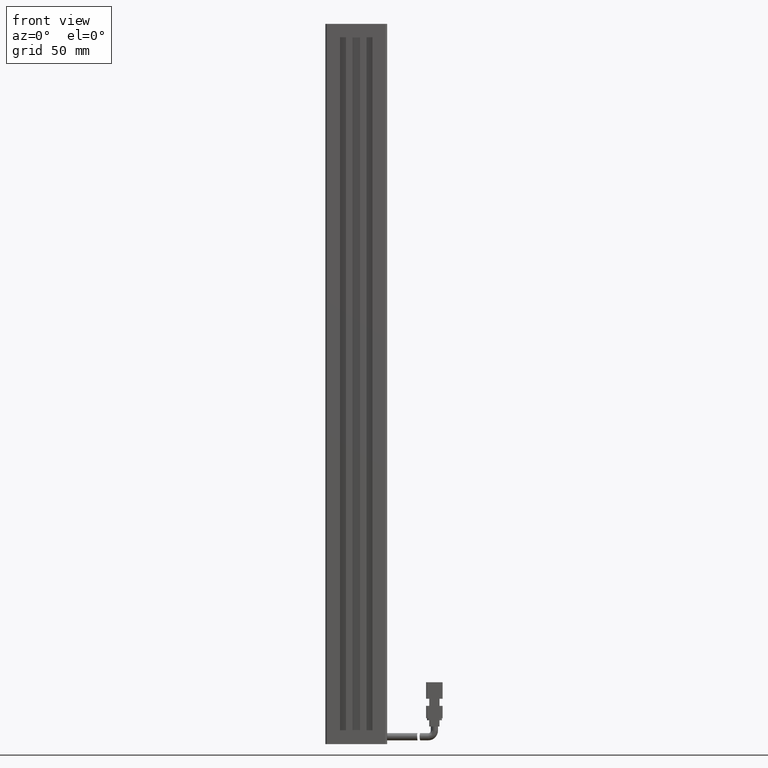
[diagram: clean part render]
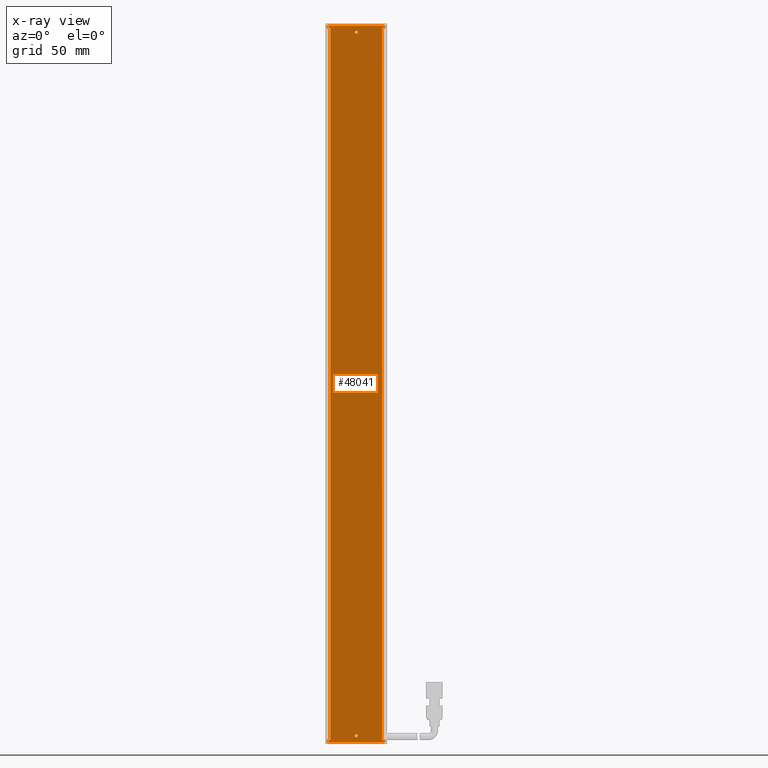
[diagram: x-ray — body ghosted, one internal face saturated and labeled with its STEP entity id]
A machine part, front view, then the same camera in x-ray: the body is ghosted and one INTERNAL B-rep face — a face not visible from any outside direction — is saturated and labeled: STEP entity #48041.
In plain terms, the highlighted planar face has unit normal (-0, 1, 0).
Its self-contained STEP definition (entity closure, byte-faithful):
#106 = ORIENTED_EDGE ( 'NONE', *, *, #58812, .F. ) ;
#227 = EDGE_CURVE ( 'NONE', #38897, #9683, #65354, .T. ) ;
#303 = LINE ( 'NONE', #24814, #40169 ) ;
#789 = CARTESIAN_POINT ( 'NONE',  ( 40.92537974683541800, 32.19594479660386100, 56.00000000000005000 ) ) ;
#849 = VERTEX_POINT ( 'NONE', #33002 ) ;
#969 = VERTEX_POINT ( 'NONE', #57996 ) ;
#1435 = ORIENTED_EDGE ( 'NONE', *, *, #12669, .T. ) ;
#1449 = CARTESIAN_POINT ( 'NONE',  ( 25.92537974683541800, 32.19594479660386100, 58.00000000000000700 ) ) ;
#1511 = CIRCLE ( 'NONE', #61158, 0.7499999999999729100 ) ;
#2529 = VERTEX_POINT ( 'NONE', #11626 ) ;
#3069 = CARTESIAN_POINT ( 'NONE',  ( 53.42537974683542500, 32.19594479660386800, 60.00000000000001400 ) ) ;
#3681 = ORIENTED_EDGE ( 'NONE', *, *, #33162, .F. ) ;
#4078 = DIRECTION ( 'NONE',  ( 1.000000000000000000, 0.0000000000000000000, 0.0000000000000000000 ) ) ;
#4305 = VECTOR ( 'NONE', #6582, 1000.000000000000000 ) ;
#4897 = EDGE_LOOP ( 'NONE', ( #14689, #5798 ) ) ;
#5228 = EDGE_LOOP ( 'NONE', ( #38153, #61682 ) ) ;
#5230 = CARTESIAN_POINT ( 'NONE',  ( 27.52537974683535900, 32.19594479660386100, -289.0000000000000000 ) ) ;
#5798 = ORIENTED_EDGE ( 'NONE', *, *, #49959, .F. ) ;
#5941 = DIRECTION ( 'NONE',  ( 0.0000000000000000000, 0.0000000000000000000, 1.000000000000000000 ) ) ;
#6582 = DIRECTION ( 'NONE',  ( 1.000000000000000000, -0.0000000000000000000, 0.0000000000000000000 ) ) ;
#6733 = VECTOR ( 'NONE', #18462, 1000.000000000000000 ) ;
#7038 = CARTESIAN_POINT ( 'NONE',  ( 40.92537974683536100, 32.19594479660386100, -286.0000000000000000 ) ) ;
#7869 = AXIS2_PLACEMENT_3D ( 'NONE', #789, #37148, #5941 ) ;
#7879 = FACE_BOUND ( 'NONE', #4897, .T. ) ;
#8304 = VERTEX_POINT ( 'NONE', #53223 ) ;
#9221 = AXIS2_PLACEMENT_3D ( 'NONE', #44750, #13536, #50029 ) ;
#9683 = VERTEX_POINT ( 'NONE', #49461 ) ;
#10264 = VERTEX_POINT ( 'NONE', #5230 ) ;
#10459 = CARTESIAN_POINT ( 'NONE',  ( 54.32537974683541600, 32.19594479660386100, 59.00000000000005000 ) ) ;
#10483 = DIRECTION ( 'NONE',  ( 5.551115123125781500E-017, 0.0000000000000000000, 1.000000000000000000 ) ) ;
#11266 = LINE ( 'NONE', #51069, #37348 ) ;
#11626 = CARTESIAN_POINT ( 'NONE',  ( 54.32537974683537400, 32.19594479660386100, -289.0000000000000000 ) ) ;
#11839 = ORIENTED_EDGE ( 'NONE', *, *, #67478, .T. ) ;
#11978 = DIRECTION ( 'NONE',  ( -0.0000000000000000000, -1.000000000000000000, -0.0000000000000000000 ) ) ;
#12241 = DIRECTION ( 'NONE',  ( 0.0000000000000000000, 0.0000000000000000000, 1.000000000000000000 ) ) ;
#12305 = LINE ( 'NONE', #10459, #61273 ) ;
#12669 = EDGE_CURVE ( 'NONE', #42760, #969, #59790, .T. ) ;
#12676 = ORIENTED_EDGE ( 'NONE', *, *, #45570, .F. ) ;
#12730 = VECTOR ( 'NONE', #4078, 1000.000000000000000 ) ;
#12986 = EDGE_LOOP ( 'NONE', ( #106, #33293, #1435, #65087, #3681, #15032, #66371, #11839, #55715, #12676, #36089, #33846 ) ) ;
#13201 = LINE ( 'NONE', #41743, #40948 ) ;
#13536 = DIRECTION ( 'NONE',  ( -0.0000000000000000000, 1.000000000000000000, 0.0000000000000000000 ) ) ;
#14689 = ORIENTED_EDGE ( 'NONE', *, *, #227, .F. ) ;
#15032 = ORIENTED_EDGE ( 'NONE', *, *, #25935, .F. ) ;
#17487 = CARTESIAN_POINT ( 'NONE',  ( 28.42537974683542100, 32.19594479660386800, -288.0000000000000600 ) ) ;
#18136 = CARTESIAN_POINT ( 'NONE',  ( 40.92537974683542500, 32.19594479660386800, -288.0000000000000600 ) ) ;
#18462 = DIRECTION ( 'NONE',  ( -0.0000000000000000000, -0.0000000000000000000, -1.000000000000000000 ) ) ;
#18725 = CARTESIAN_POINT ( 'NONE',  ( 54.32537974683540900, 32.19594479660386100, -289.0000000000000000 ) ) ;
#20084 = VERTEX_POINT ( 'NONE', #45552 ) ;
#21223 = LINE ( 'NONE', #18725, #47307 ) ;
#22551 = DIRECTION ( 'NONE',  ( -0.0000000000000000000, -1.000000000000000000, -0.0000000000000000000 ) ) ;
#23184 = CARTESIAN_POINT ( 'NONE',  ( 28.42537974683542100, 32.19594479660386800, 60.00000000000001400 ) ) ;
#23838 = CARTESIAN_POINT ( 'NONE',  ( 27.52537974683535900, 32.19594479660386800, -288.0000000000000600 ) ) ;
#24814 = CARTESIAN_POINT ( 'NONE',  ( 54.32537974683541600, 32.19594479660386100, 59.00000000000005000 ) ) ;
#25792 = VERTEX_POINT ( 'NONE', #66621 ) ;
#25935 = EDGE_CURVE ( 'NONE', #8304, #849, #56897, .T. ) ;
#26143 = EDGE_CURVE ( 'NONE', #62949, #25792, #1511, .T. ) ;
#27371 = VERTEX_POINT ( 'NONE', #17487 ) ;
#28095 = EDGE_CURVE ( 'NONE', #2529, #10264, #21223, .T. ) ;
#28293 = FACE_BOUND ( 'NONE', #5228, .T. ) ;
#29147 = VECTOR ( 'NONE', #10483, 1000.000000000000000 ) ;
#30063 = CARTESIAN_POINT ( 'NONE',  ( 53.42537974683542500, 32.19594479660386800, 58.00000000000000700 ) ) ;
#30508 = DIRECTION ( 'NONE',  ( -5.551115123125781500E-017, -0.0000000000000000000, -1.000000000000000000 ) ) ;
#31837 = EDGE_CURVE ( 'NONE', #57923, #969, #62753, .T. ) ;
#33002 = CARTESIAN_POINT ( 'NONE',  ( 27.52537974683541200, 32.19594479660386100, 59.00000000000005000 ) ) ;
#33162 = EDGE_CURVE ( 'NONE', #849, #57923, #303, .T. ) ;
#33293 = ORIENTED_EDGE ( 'NONE', *, *, #40389, .F. ) ;
#33846 = ORIENTED_EDGE ( 'NONE', *, *, #51823, .F. ) ;
#34025 = CARTESIAN_POINT ( 'NONE',  ( 40.92537974683541800, 32.19594479660386100, 56.75000000000005000 ) ) ;
#35510 = EDGE_CURVE ( 'NONE', #25792, #62949, #57158, .T. ) ;
#36089 = ORIENTED_EDGE ( 'NONE', *, *, #28095, .F. ) ;
#36509 = CARTESIAN_POINT ( 'NONE',  ( 54.32537974683540200, 32.19594479660386100, -288.0000000000000600 ) ) ;
#36575 = VECTOR ( 'NONE', #30508, 1000.000000000000000 ) ;
#37148 = DIRECTION ( 'NONE',  ( -0.0000000000000000000, -1.000000000000000000, -0.0000000000000000000 ) ) ;
#37348 = VECTOR ( 'NONE', #61816, 1000.000000000000000 ) ;
#38153 = ORIENTED_EDGE ( 'NONE', *, *, #35510, .F. ) ;
#38469 = CARTESIAN_POINT ( 'NONE',  ( 40.92537974683536100, 32.19594479660386100, -286.7499999999999400 ) ) ;
#38887 = LINE ( 'NONE', #18136, #65086 ) ;
#38889 = VERTEX_POINT ( 'NONE', #23838 ) ;
#38897 = VERTEX_POINT ( 'NONE', #34025 ) ;
#40169 = VECTOR ( 'NONE', #66580, 1000.000000000000000 ) ;
#40389 = EDGE_CURVE ( 'NONE', #42760, #20084, #46641, .T. ) ;
#40948 = VECTOR ( 'NONE', #46959, 1000.000000000000000 ) ;
#41743 = CARTESIAN_POINT ( 'NONE',  ( 40.92537974683542500, 32.19594479660386800, 58.00000000000000700 ) ) ;
#42760 = VERTEX_POINT ( 'NONE', #30063 ) ;
#43219 = CARTESIAN_POINT ( 'NONE',  ( 40.92537974683541800, 32.19594479660386100, 56.00000000000005000 ) ) ;
#43386 = VERTEX_POINT ( 'NONE', #36509 ) ;
#43484 = DIRECTION ( 'NONE',  ( -0.0000000000000000000, -1.000000000000000000, -0.0000000000000000000 ) ) ;
#43709 = VERTEX_POINT ( 'NONE', #65020 ) ;
#44750 = CARTESIAN_POINT ( 'NONE',  ( 54.32537974683541600, 32.19594479660386100, 59.00000000000005000 ) ) ;
#45380 = LINE ( 'NONE', #23184, #57698 ) ;
#45552 = CARTESIAN_POINT ( 'NONE',  ( 53.42537974683542500, 32.19594479660386100, -288.0000000000000600 ) ) ;
#45570 = EDGE_CURVE ( 'NONE', #10264, #38889, #11266, .T. ) ;
#45769 = EDGE_CURVE ( 'NONE', #27371, #38889, #38887, .T. ) ;
#46641 = LINE ( 'NONE', #3069, #6733 ) ;
#46910 = CARTESIAN_POINT ( 'NONE',  ( 27.52537974683538000, 32.19594479660386100, 59.00000000000005000 ) ) ;
#46959 = DIRECTION ( 'NONE',  ( 1.000000000000000000, 0.0000000000000000000, -0.0000000000000000000 ) ) ;
#47307 = VECTOR ( 'NONE', #60520, 1000.000000000000000 ) ;
#48041 = ADVANCED_FACE ( 'NONE', ( #49463, #7879, #28293 ), #60304, .F. ) ;
#48446 = DIRECTION ( 'NONE',  ( 0.0000000000000000000, 0.0000000000000000000, 1.000000000000000000 ) ) ;
#49130 = AXIS2_PLACEMENT_3D ( 'NONE', #7038, #43484, #12241 ) ;
#49461 = CARTESIAN_POINT ( 'NONE',  ( 40.92537974683541800, 32.19594479660386100, 55.25000000000005000 ) ) ;
#49463 = FACE_OUTER_BOUND ( 'NONE', #12986, .T. ) ;
#49959 = EDGE_CURVE ( 'NONE', #9683, #38897, #66130, .T. ) ;
#50029 = DIRECTION ( 'NONE',  ( 5.551115123125781500E-017, 0.0000000000000000000, 1.000000000000000000 ) ) ;
#51069 = CARTESIAN_POINT ( 'NONE',  ( 27.52537974683538000, 32.19594479660386100, 59.00000000000005000 ) ) ;
#51823 = EDGE_CURVE ( 'NONE', #43386, #2529, #12305, .T. ) ;
#53223 = CARTESIAN_POINT ( 'NONE',  ( 27.52537974683535900, 32.19594479660386800, 58.00000000000000700 ) ) ;
#53787 = CARTESIAN_POINT ( 'NONE',  ( 40.92537974683536100, 32.19594479660386100, -286.0000000000000000 ) ) ;
#54373 = LINE ( 'NONE', #66561, #12730 ) ;
#55715 = ORIENTED_EDGE ( 'NONE', *, *, #45769, .T. ) ;
#55811 = AXIS2_PLACEMENT_3D ( 'NONE', #43219, #11978, #48446 ) ;
#56534 = CARTESIAN_POINT ( 'NONE',  ( 54.32537974683541600, 32.19594479660386100, 59.00000000000005000 ) ) ;
#56665 = CARTESIAN_POINT ( 'NONE',  ( 54.32537974683541600, 32.19594479660386100, 59.00000000000005000 ) ) ;
#56897 = LINE ( 'NONE', #46910, #29147 ) ;
#57158 = CIRCLE ( 'NONE', #49130, 0.7499999999999729100 ) ;
#57678 = DIRECTION ( 'NONE',  ( -5.551115123125781500E-017, -0.0000000000000000000, -1.000000000000000000 ) ) ;
#57698 = VECTOR ( 'NONE', #59664, 1000.000000000000000 ) ;
#57923 = VERTEX_POINT ( 'NONE', #56665 ) ;
#57996 = CARTESIAN_POINT ( 'NONE',  ( 54.32537974683541600, 32.19594479660386100, 58.00000000000000700 ) ) ;
#58812 = EDGE_CURVE ( 'NONE', #20084, #43386, #54373, .T. ) ;
#59043 = DIRECTION ( 'NONE',  ( 0.0000000000000000000, 0.0000000000000000000, 1.000000000000000000 ) ) ;
#59664 = DIRECTION ( 'NONE',  ( -0.0000000000000000000, -0.0000000000000000000, -1.000000000000000000 ) ) ;
#59790 = LINE ( 'NONE', #1449, #4305 ) ;
#59934 = DIRECTION ( 'NONE',  ( -1.000000000000000000, -0.0000000000000000000, 0.0000000000000000000 ) ) ;
#60304 = PLANE ( 'NONE',  #9221 ) ;
#60520 = DIRECTION ( 'NONE',  ( -1.000000000000000000, -0.0000000000000000000, 5.551115123125781500E-017 ) ) ;
#61158 = AXIS2_PLACEMENT_3D ( 'NONE', #53787, #22551, #59043 ) ;
#61273 = VECTOR ( 'NONE', #57678, 1000.000000000000000 ) ;
#61682 = ORIENTED_EDGE ( 'NONE', *, *, #26143, .F. ) ;
#61816 = DIRECTION ( 'NONE',  ( 5.551115123125781500E-017, 0.0000000000000000000, 1.000000000000000000 ) ) ;
#62717 = EDGE_CURVE ( 'NONE', #8304, #43709, #13201, .T. ) ;
#62753 = LINE ( 'NONE', #56534, #36575 ) ;
#62949 = VERTEX_POINT ( 'NONE', #38469 ) ;
#65020 = CARTESIAN_POINT ( 'NONE',  ( 28.42537974683542100, 32.19594479660386100, 58.00000000000000700 ) ) ;
#65086 = VECTOR ( 'NONE', #59934, 1000.000000000000000 ) ;
#65087 = ORIENTED_EDGE ( 'NONE', *, *, #31837, .F. ) ;
#65354 = CIRCLE ( 'NONE', #55811, 0.7500000000000006700 ) ;
#66130 = CIRCLE ( 'NONE', #7869, 0.7500000000000006700 ) ;
#66371 = ORIENTED_EDGE ( 'NONE', *, *, #62717, .T. ) ;
#66561 = CARTESIAN_POINT ( 'NONE',  ( 40.92537974683542500, 32.19594479660386800, -288.0000000000000600 ) ) ;
#66580 = DIRECTION ( 'NONE',  ( 1.000000000000000000, 0.0000000000000000000, -5.551115123125781500E-017 ) ) ;
#66621 = CARTESIAN_POINT ( 'NONE',  ( 40.92537974683536100, 32.19594479660386100, -285.2500000000000000 ) ) ;
#67478 = EDGE_CURVE ( 'NONE', #43709, #27371, #45380, .T. ) ;